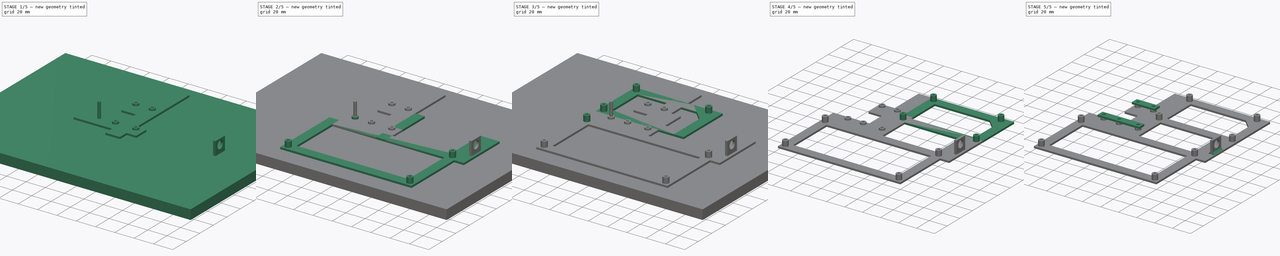
[diagram: build sequence overview — one tinted view per stage of 5, left to right]
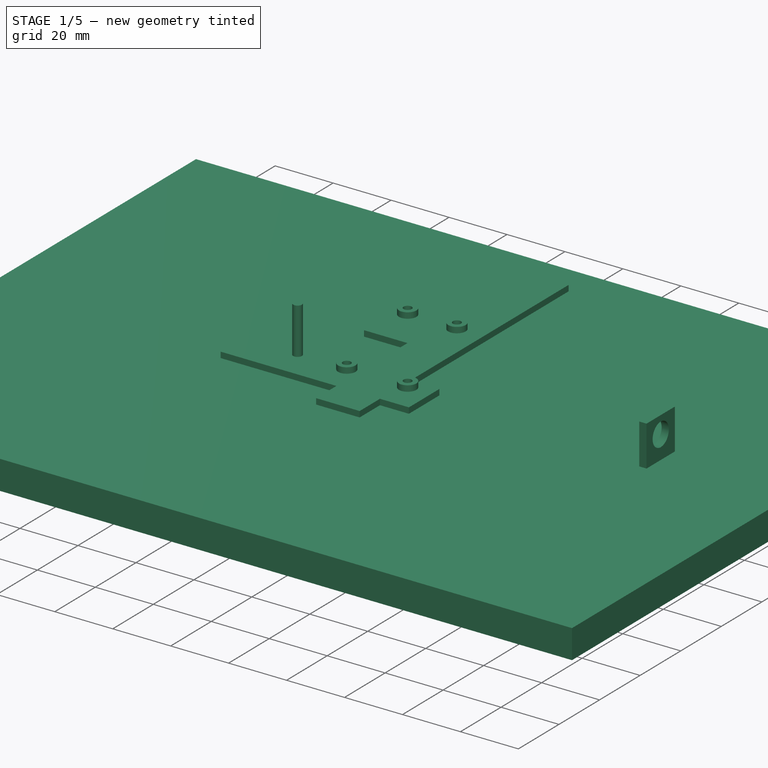
[diagram: stage 1 of 5 — iso view after this stage's code; geometry added in this stage tinted green]
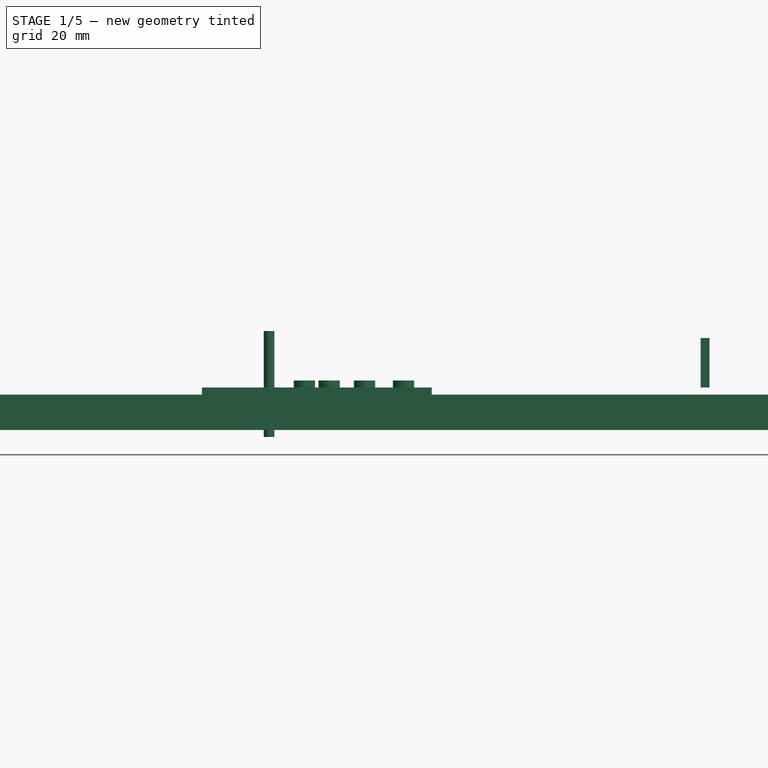
[diagram: stage 1 of 5 — front view after this stage's code; geometry added in this stage tinted green]
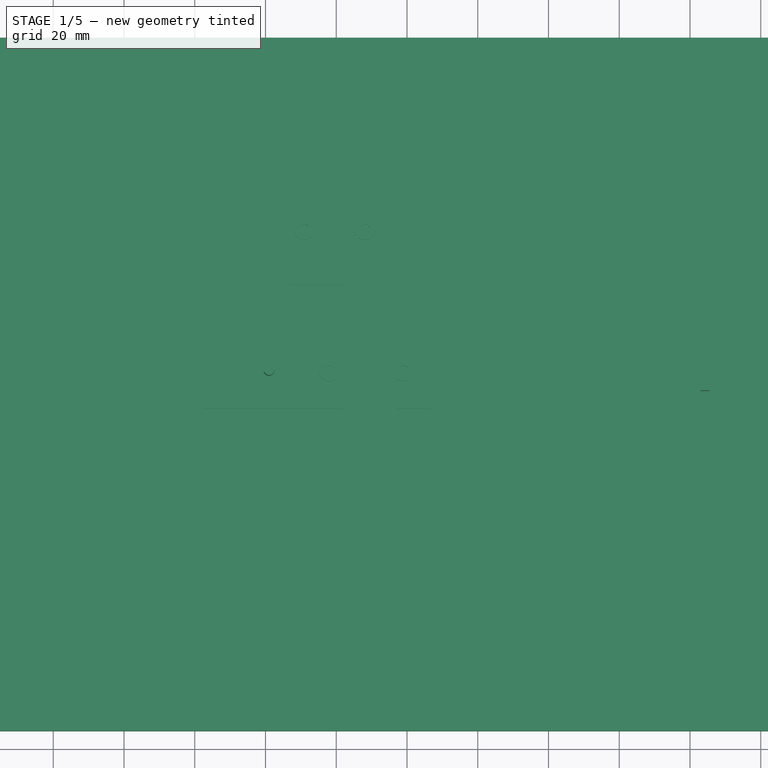
[diagram: stage 1 of 5 — top view after this stage's code; geometry added in this stage tinted green]
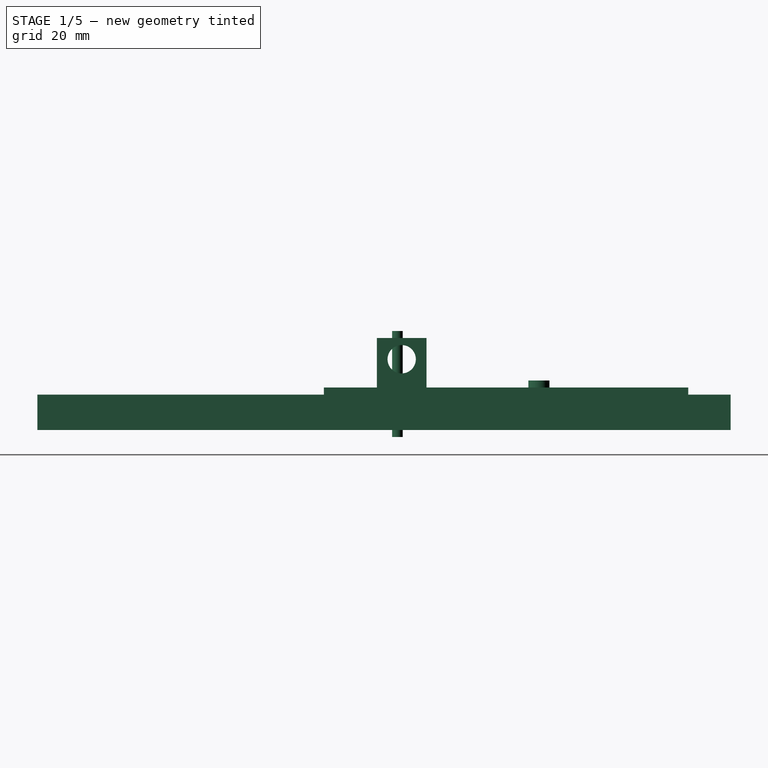
[diagram: stage 1 of 5 — right view after this stage's code; geometry added in this stage tinted green]
FCSTD DOCUMENT  (FreeCAD 0.18R4 (GitTag))
Label: bases_busvim_arduino
License: CreativeCommons Attribution-ShareAlike
LicenseURL: http://creativecommons.org/licenses/by-sa/4.0/
objects: Part::MultiFuse×27, Part::Box×17, Part::Feature×13, Part::Cut×12, Part::Cylinder×11, Part::Chamfer×2, Sketcher::SketchObject×1, Part::Extrusion×1
note: 84 computed .brp shape members not serialized (recipe doc carries the construction recipe); baked Part::Feature solids carry a one-line shape summary decoded from their .brp

FEATURE [Part::Box] Box010  label="Cube010"
  AttacherType = Attacher::AttachEngine3D
  Height = 2
  Length = 65
  Placement = pos=(82,-4,-115) rot=(0,0,1;0rad)
  Width = 15
FEATURE [Part::Box] Box011  label="Cube011"
  AttacherType = Attacher::AttachEngine3D
  Height = 2
  Length = 15
  Placement = pos=(122,-14,-115) rot=(0,0,1;0rad)
  Width = 103
FEATURE [Part::Feature] Fusion007002003011013  label="soporte_simple_009"
  Placement = pos=(94.2,-8.7,-4) rot=(0,0,1;0rad)
  shape: bbox 6 x 6 x 6 mm, 8 faces (baked)
FEATURE [Part::Feature] Fusion007002003011014  label="soporte_simple_010"
  Placement = pos=(111.2,-8.7,-4) rot=(0,0,1;0rad)
  shape: bbox 6 x 6 x 6 mm, 8 faces (baked)
FEATURE [Part::Feature] Fusion007002003011015  label="soporte_simple_011"
  Placement = pos=(132.2,-8.7,-4) rot=(0,0,1;0rad)
  shape: bbox 6 x 6 x 6 mm, 8 faces (baked)
FEATURE [Part::Box] Box012  label="Cube012"
  AttacherType = Attacher::AttachEngine3D
  Height = 2
  Length = 30
  Placement = pos=(107,31,-115) rot=(0,0,1;0rad)
  Width = 20
FEATURE [Part::Feature] Fusion007002003011016  label="soporte_simple_012"
  Placement = pos=(104.2,31.3,-4) rot=(0,0,1;0rad)
  shape: bbox 6 x 6 x 6 mm, 8 faces (baked)
FEATURE [Part::Feature] Fusion007002003011017  label="soporte_simple_013"
  Placement = pos=(121.2,31.3,-4) rot=(0,0,1;0rad)
  shape: bbox 6 x 6 x 6 mm, 8 faces (baked)
FEATURE [Part::MultiFuse] Fusion007002003011018
  Shapes = -> [Box010,Box011]
FEATURE [Part::MultiFuse] Fusion007002003011019
  Shapes = -> [Fusion007002003011018,Box012]
FEATURE [Part::MultiFuse] Fusion007002003011020
  Shapes = -> [Fusion007002003011019,Fusion007002003011017]
FEATURE [Part::MultiFuse] Fusion007002003011021
  Shapes = -> [Fusion007002003011016,Fusion007002003011020]
FEATURE [Part::MultiFuse] Fusion007002003011022
  Shapes = -> [Fusion007002003011021,Fusion007002003011015]
FEATURE [Part::MultiFuse] Fusion007002003011023
  Shapes = -> [Fusion007002003011022,Fusion007002003011014]
FEATURE [Part::Box] Box013  label="Cube013"
  AttacherType = Attacher::AttachEngine3D
  Height = 10
  Length = 267
  Placement = pos=(0,-95,-125) rot=(0,0,1;0rad)
  Width = 196
FEATURE [Part::Cylinder] Cylinder
  Angle = 360
  AttacherType = Attacher::AttachEngine3D
  Height = 30
  Placement = pos=(101,6.8,-127) rot=(0,0,1;0rad)
  Radius = 1.5
FEATURE [Part::Cylinder] Cylinder010
  Angle = 360
  AttacherType = Attacher::AttachEngine3D
  Height = 10
  Placement = pos=(273,16,-105) rot=(-0.57735,0.57735,0.57735;4.18879rad)
  Radius = 4
FEATURE [Part::Box] Box016  label="Cube016"
  AttacherType = Attacher::AttachEngine3D
  Height = 14
  Length = 2.5
  Placement = pos=(267,9,-113) rot=(0,0,1;0rad)
  Width = 14
FEATURE [Part::Cut] Cut011
  Base = -> Box016
  Placement = pos=(-44,-8,0) rot=(0,0,1;0rad)
  Tool = -> Cylinder010
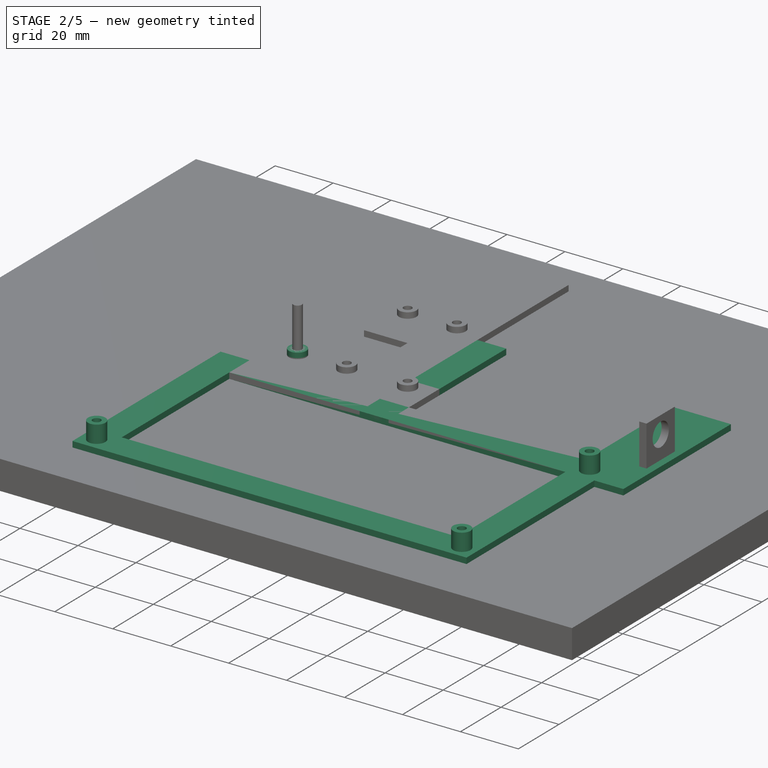
[diagram: stage 2 of 5 — iso view after this stage's code; geometry added in this stage tinted green]
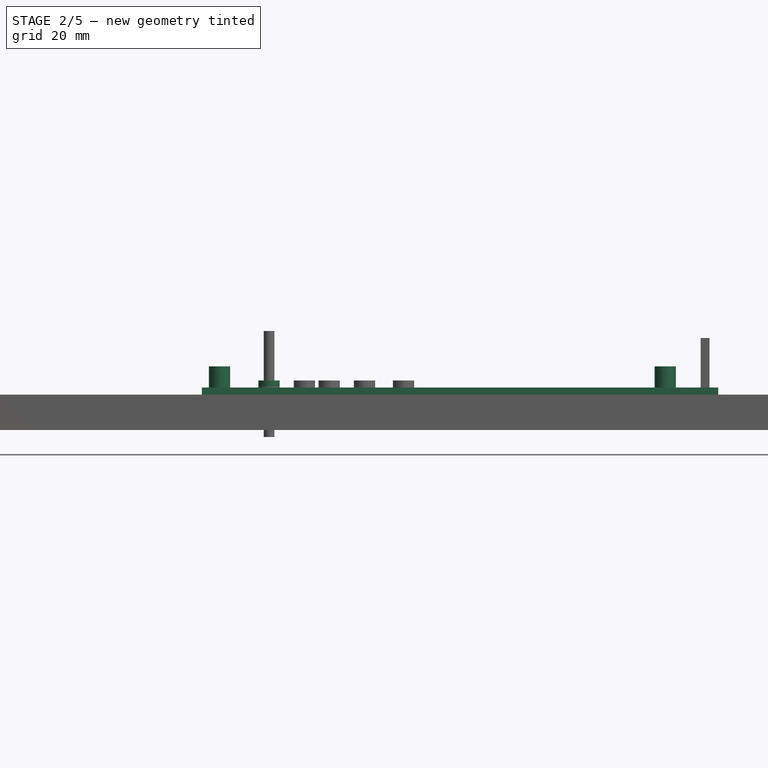
[diagram: stage 2 of 5 — front view after this stage's code; geometry added in this stage tinted green]
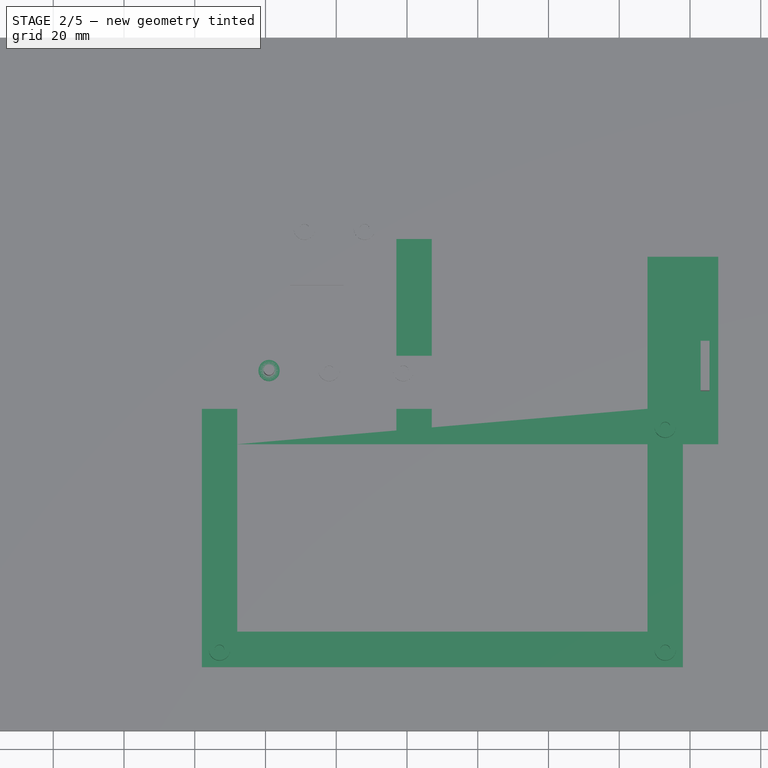
[diagram: stage 2 of 5 — top view after this stage's code; geometry added in this stage tinted green]
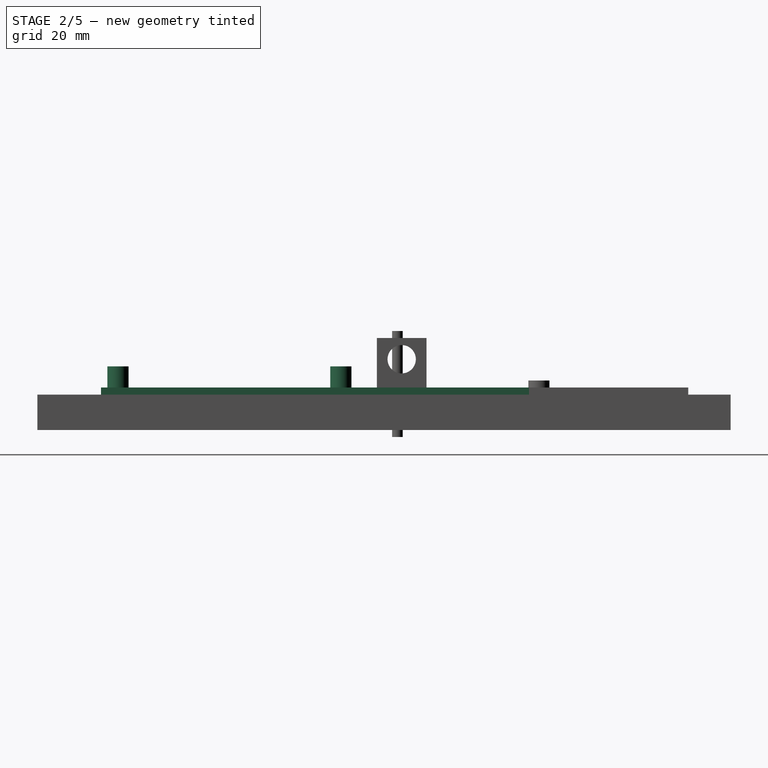
[diagram: stage 2 of 5 — right view after this stage's code; geometry added in this stage tinted green]
FEATURE [Part::Feature] Fusion007002003011002  label="soporte_simple_005"
  Placement = pos=(80.2,-24.7,0) rot=(0,0,1;0rad)
  shape: bbox 6 x 6 x 6 mm, 8 faces (baked)
FEATURE [Part::Feature] Fusion007002003011003  label="soporte_simple_006"
  Placement = pos=(206.2,-24.7,0) rot=(0,0,1;0rad)
  shape: bbox 6 x 6 x 6 mm, 8 faces (baked)
FEATURE [Part::Feature] Fusion007002003011004  label="soporte_simple_007"
  Placement = pos=(80.2,-87.7,0) rot=(0,0,1;0rad)
  shape: bbox 6 x 6 x 6 mm, 8 faces (baked)
FEATURE [Part::Feature] Fusion007002003011005  label="soporte_simple_008"
  Placement = pos=(206.2,-87.7,0) rot=(0,0,1;0rad)
  shape: bbox 6 x 6 x 6 mm, 8 faces (baked)
FEATURE [Part::Box] Box004  label="Cube004"
  AttacherType = Attacher::AttachEngine3D
  Height = 2
  Length = 136
  Placement = pos=(82,-14,-115) rot=(0,0,1;0rad)
  Width = 10
FEATURE [Part::Box] Box005  label="Cube005"
  AttacherType = Attacher::AttachEngine3D
  Height = 2
  Length = 136
  Placement = pos=(82,-77,-115) rot=(0,0,1;0rad)
  Width = 10
FEATURE [Part::Box] Box006  label="Cube006"
  AttacherType = Attacher::AttachEngine3D
  Height = 2
  Length = 10
  Placement = pos=(82,-77,-115) rot=(0,0,1;0rad)
  Width = 73
FEATURE [Part::Box] Box007  label="Cube007"
  AttacherType = Attacher::AttachEngine3D
  Height = 2
  Length = 10
  Placement = pos=(208,-77,-115) rot=(0,0,1;0rad)
  Width = 73
FEATURE [Part::MultiFuse] Fusion007002003011006
  Shapes = -> [Box006,Box004]
FEATURE [Part::MultiFuse] Fusion007002003011007
  Shapes = -> [Fusion007002003011006,Box007]
FEATURE [Part::MultiFuse] Fusion007002003011008
  Shapes = -> [Fusion007002003011007,Box005]
FEATURE [Part::MultiFuse] Fusion007002003011009
  Shapes = -> [Fusion007002003011008,Fusion007002003011005]
FEATURE [Part::MultiFuse] Fusion007002003011010
  Shapes = -> [Fusion007002003011009,Fusion007002003011004]
FEATURE [Part::MultiFuse] Fusion007002003011011
  Shapes = -> [Fusion007002003011010,Fusion007002003011003]
FEATURE [Part::Box] Box008  label="Cube008"
  AttacherType = Attacher::AttachEngine3D
  Height = 2
  Length = 10
  Placement = pos=(137,-14,-115) rot=(0,0,1;0rad)
  Width = 58
FEATURE [Part::Box] Box009  label="Cube009"
  AttacherType = Attacher::AttachEngine3D
  Height = 2
  Length = 20
  Placement = pos=(208,-14,-115) rot=(0,0,1;0rad)
  Width = 53
FEATURE [Part::MultiFuse] Fusion007002003011024
  Shapes = -> [Fusion007002003011023,Fusion007002003011013]
FEATURE [Part::MultiFuse] Fusion007002003011027
  Shapes = -> [Box008,Fusion007002003011024]
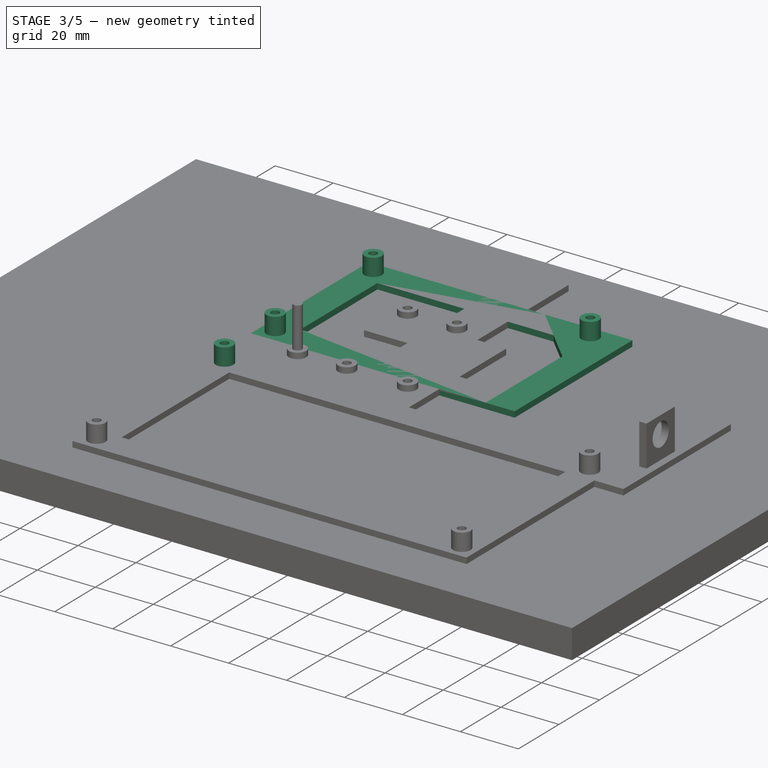
[diagram: stage 3 of 5 — iso view after this stage's code; geometry added in this stage tinted green]
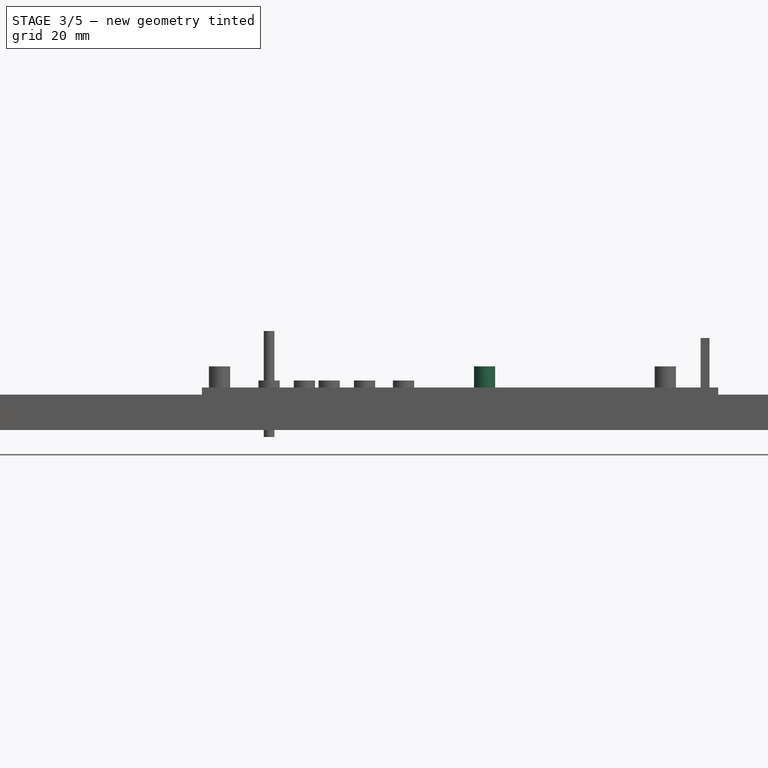
[diagram: stage 3 of 5 — front view after this stage's code; geometry added in this stage tinted green]
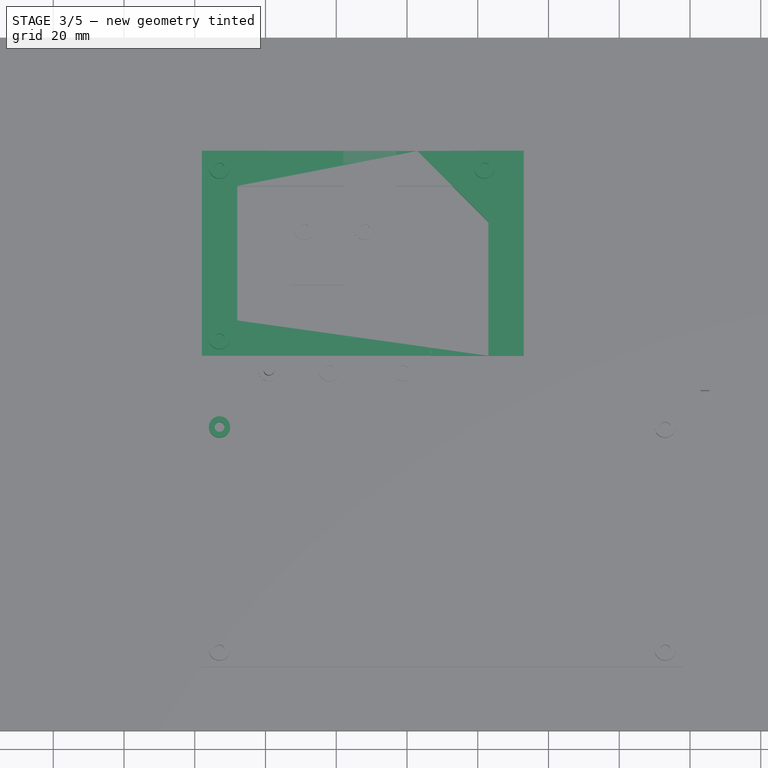
[diagram: stage 3 of 5 — top view after this stage's code; geometry added in this stage tinted green]
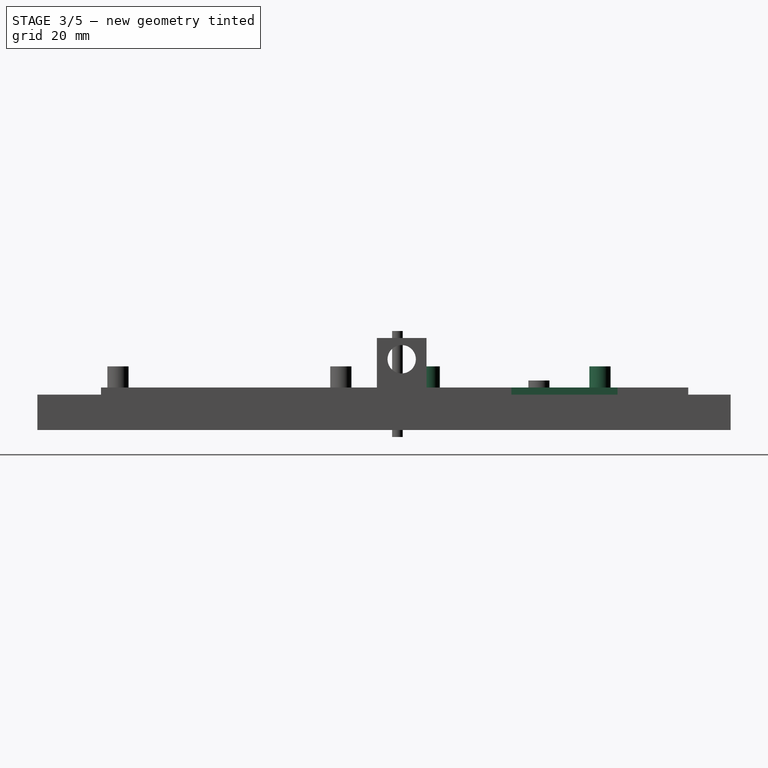
[diagram: stage 3 of 5 — right view after this stage's code; geometry added in this stage tinted green]
FEATURE [Part::Feature] Fusion007002003001  label="soporte_simple_1"
  Placement = pos=(80.2,0.3,0) rot=(0,0,1;0rad)
  shape: bbox 6 x 6 x 6 mm, 8 faces (baked)
FEATURE [Part::Feature] Fusion007002003002  label="soporte_simple_002"
  Placement = pos=(161.48,0.3,0) rot=(0,0,1;0rad)
  shape: bbox 6 x 6 x 6 mm, 8 faces (baked)
FEATURE [Part::Feature] Fusion007002003003  label="soporte_simple_003"
  Placement = pos=(80.2,48.56,0) rot=(0,0,1;0rad)
  shape: bbox 6 x 6 x 6 mm, 8 faces (baked)
FEATURE [Part::Feature] Fusion007002003004  label="soporte_simple_004"
  Placement = pos=(155.13,48.56,0) rot=(0,0,1;0rad)
  shape: bbox 6 x 6 x 6 mm, 8 faces (baked)
FEATURE [Part::Box] Box  label="Cube"
  AttacherType = Attacher::AttachEngine3D
  Height = 2
  Length = 10
  Placement = pos=(82,11,-115) rot=(0,0,1;0rad)
  Width = 58
FEATURE [Part::Box] Box001  label="Cube001"
  AttacherType = Attacher::AttachEngine3D
  Height = 2
  Length = 91
  Placement = pos=(82,59,-115) rot=(0,0,1;0rad)
  Width = 10
FEATURE [Part::Box] Box002  label="Cube002"
  AttacherType = Attacher::AttachEngine3D
  Height = 2
  Length = 91
  Placement = pos=(82,11,-115) rot=(0,0,1;0rad)
  Width = 10
FEATURE [Part::Box] Box003  label="Cube003"
  AttacherType = Attacher::AttachEngine3D
  Height = 2
  Length = 10
  Placement = pos=(163,11,-115) rot=(0,0,1;0rad)
  Width = 58
FEATURE [Sketcher::SketchObject] Sketch
  sketch-geometry (3):
    g0: LineSegment StartX=0 StartY=0 StartZ=0 EndX=0 EndY=30 EndZ=0
    g1: LineSegment StartX=0 StartY=30 StartZ=0 EndX=30 EndY=0 EndZ=0
    g2: LineSegment StartX=30 StartY=0 StartZ=0 EndX=0 EndY=0 EndZ=0
  constraints (8):
    c: Coincident(g-1,g0)
    c: PointOnObject(g0,g-2)
    c: Coincident(g0,g1)
    c: PointOnObject(g1,g-1)
    c: Coincident(g1,g2)
    c: Coincident(g2,g0)
    c: Equal(g0,g2)
    c: DistanceX(g2,g2) = 30
FEATURE [Part::Extrusion] Extrude
  Base = -> Sketch
  Dir = (0,0,1)
  DirMode = 2
  FaceMakerClass = Part::FaceMakerBullseye
  LengthFwd = 2
  LengthRev = 0
  Placement = pos=(172.9,68.9,-115) rot=(0,0,1;3.14159rad)
  Solid = true
  Symmetric = false
FEATURE [Part::MultiFuse] Fusion
  Shapes = -> [Box,Box001]
FEATURE [Part::MultiFuse] Fusion007002003005
  Shapes = -> [Fusion,Box003]
FEATURE [Part::MultiFuse] Fusion007002003006
  Shapes = -> [Extrude,Fusion007002003005]
FEATURE [Part::MultiFuse] Fusion007002003007
  Shapes = -> [Fusion007002003006,Box002]
FEATURE [Part::MultiFuse] Fusion007002003008
  Shapes = -> [Fusion007002003007,Fusion007002003001]
FEATURE [Part::MultiFuse] Fusion007002003009
  Shapes = -> [Fusion007002003008,Fusion007002003003]
FEATURE [Part::MultiFuse] Fusion007002003010
  Shapes = -> [Fusion007002003009,Fusion007002003004]
FEATURE [Part::MultiFuse] Fusion007002003011012  label="marco_busvim"
  Shapes = -> [Fusion007002003011011,Fusion007002003011002]
FEATURE [Part::MultiFuse] Fusion007002003011025
  Shapes = -> [Box009,Fusion007002003011012]
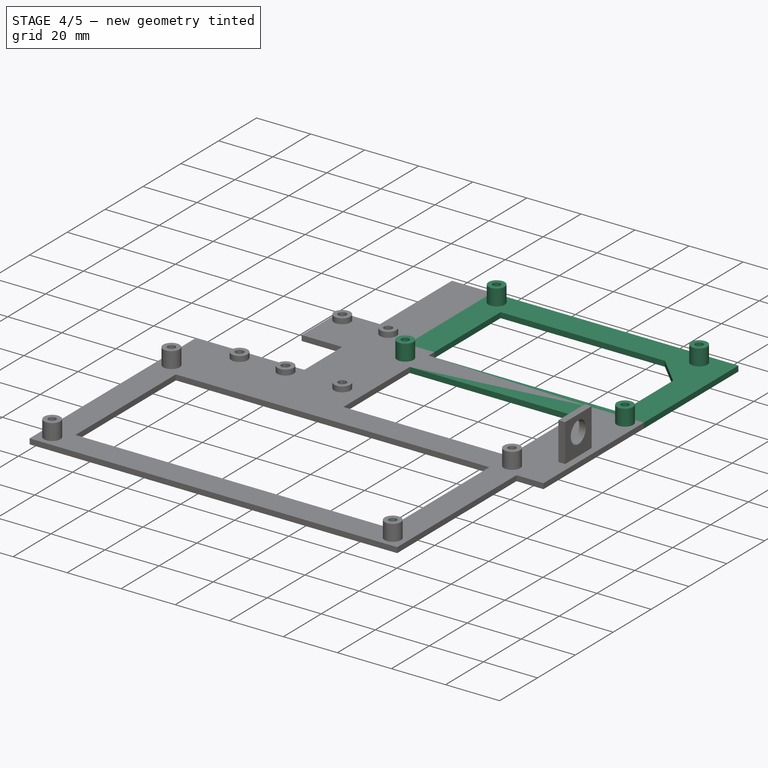
[diagram: stage 4 of 5 — iso view after this stage's code; geometry added in this stage tinted green]
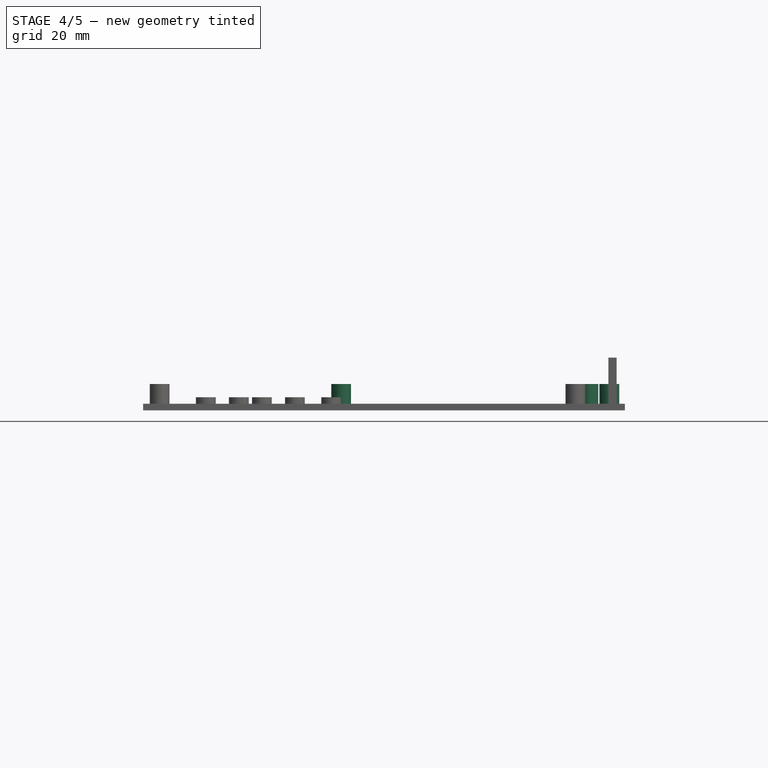
[diagram: stage 4 of 5 — front view after this stage's code; geometry added in this stage tinted green]
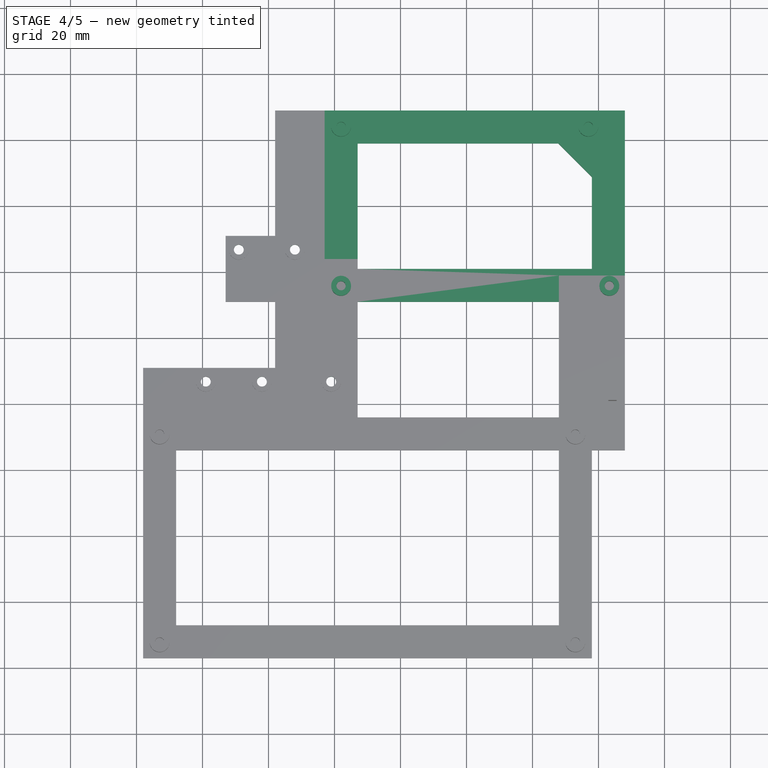
[diagram: stage 4 of 5 — top view after this stage's code; geometry added in this stage tinted green]
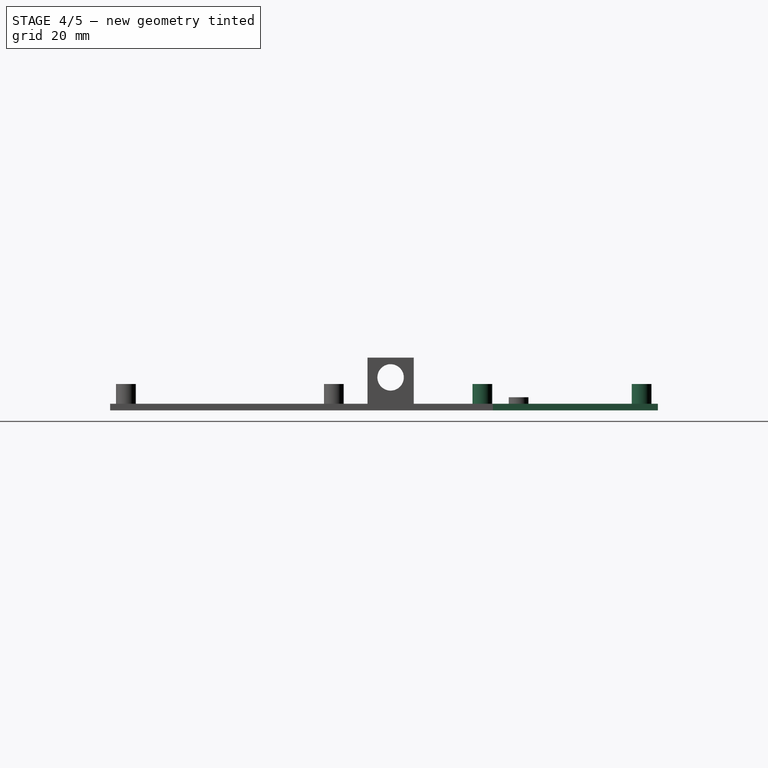
[diagram: stage 4 of 5 — right view after this stage's code; geometry added in this stage tinted green]
FEATURE [Part::MultiFuse] Fusion007002003011  label="marco_Arduino"
  Placement = pos=(55,20,0) rot=(0,0,1;0rad)
  Shapes = -> [Fusion007002003010,Fusion007002003002]
FEATURE [Part::MultiFuse] Fusion007002003011026
  Shapes = -> [Fusion007002003011025,Fusion007002003011]
FEATURE [Part::MultiFuse] Fusion007002003011028
  Shapes = -> [Fusion007002003011027,Fusion007002003011026]
FEATURE [Part::Cut] Cut  label="conjunto"
  Base = -> Fusion007002003011028
  Tool = -> Box013
FEATURE [Part::Cylinder] Cylinder002
  Angle = 360
  AttacherType = Attacher::AttachEngine3D
  Height = 30
  Placement = pos=(118,6.8,-127) rot=(0,0,1;0rad)
  Radius = 1.5
FEATURE [Part::Cylinder] Cylinder004
  Angle = 360
  AttacherType = Attacher::AttachEngine3D
  Height = 30
  Placement = pos=(139,6.8,-127) rot=(0,0,1;0rad)
  Radius = 1.5
FEATURE [Part::Cylinder] Cylinder006
  Angle = 360
  AttacherType = Attacher::AttachEngine3D
  Height = 30
  Placement = pos=(111,46.8,-127) rot=(0,0,1;0rad)
  Radius = 1.5
FEATURE [Part::Cylinder] Cylinder008
  Angle = 360
  AttacherType = Attacher::AttachEngine3D
  Height = 30
  Placement = pos=(128,46.8,-127) rot=(0,0,1;0rad)
  Radius = 1.5
FEATURE [Part::Cut] Cut001
  Base = -> Cut
  Tool = -> Cylinder
FEATURE [Part::Cut] Cut002
  Base = -> Cut001
  Tool = -> Cylinder002
FEATURE [Part::Cut] Cut003
  Base = -> Cut002
  Tool = -> Cylinder004
FEATURE [Part::Cut] Cut004
  Base = -> Cut003
  Tool = -> Cylinder006
FEATURE [Part::Cut] Cut005
  Base = -> Cut004
  Tool = -> Cylinder008
FEATURE [Part::MultiFuse] Fusion007002003011029
  Shapes = -> [Cut005,Cut011]
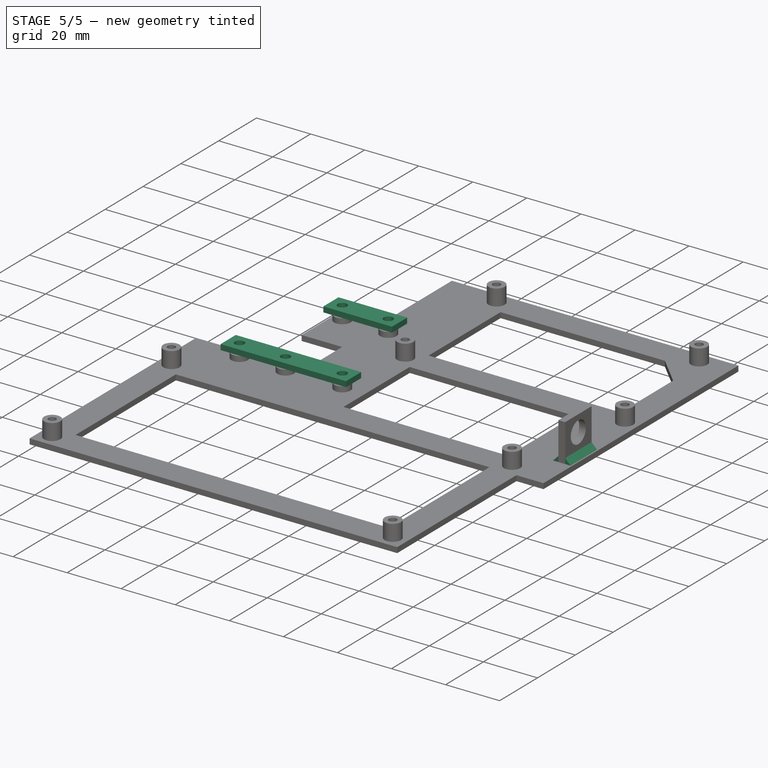
[diagram: stage 5 of 5 — iso view after this stage's code; geometry added in this stage tinted green]
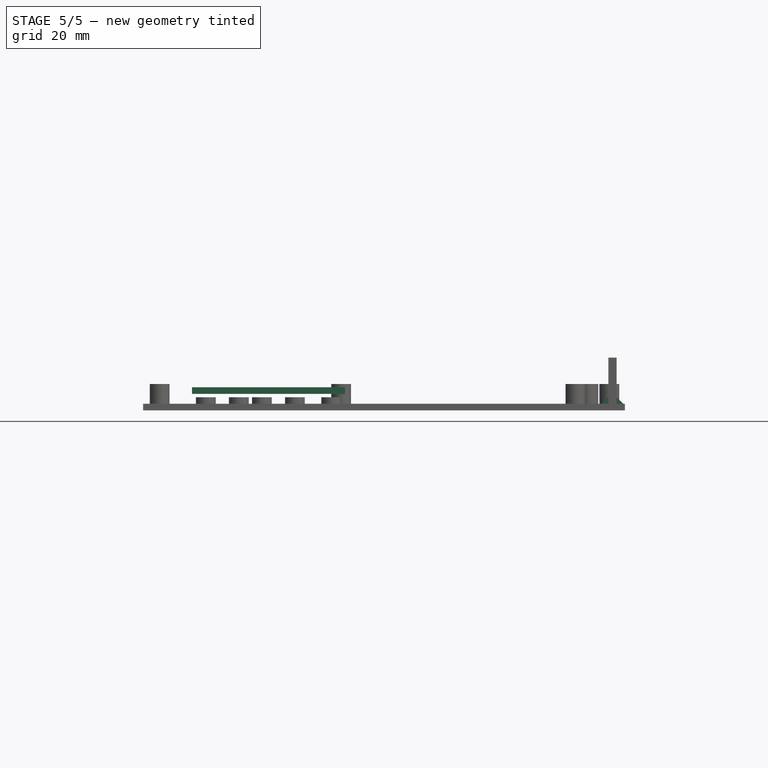
[diagram: stage 5 of 5 — front view after this stage's code; geometry added in this stage tinted green]
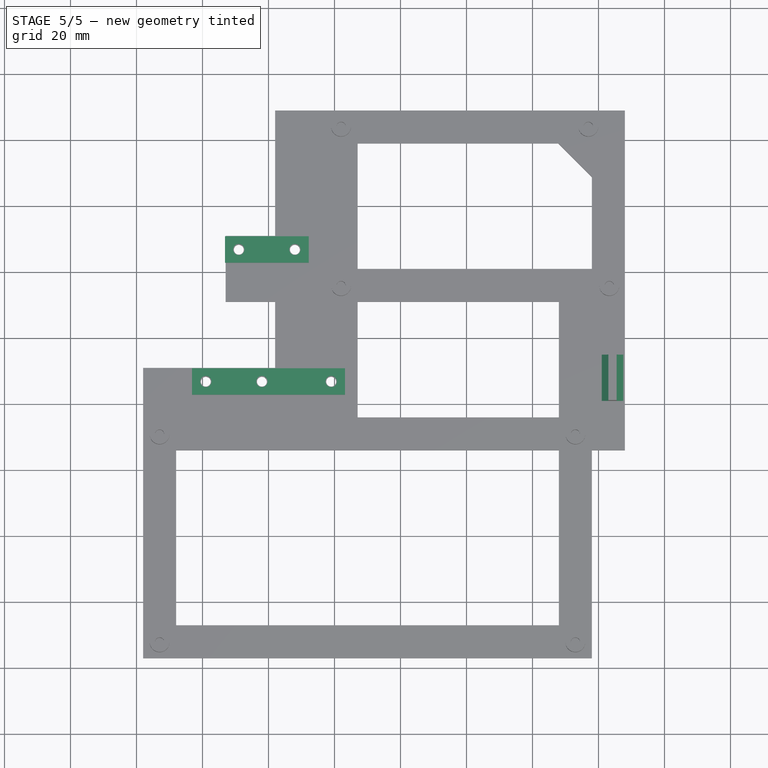
[diagram: stage 5 of 5 — top view after this stage's code; geometry added in this stage tinted green]
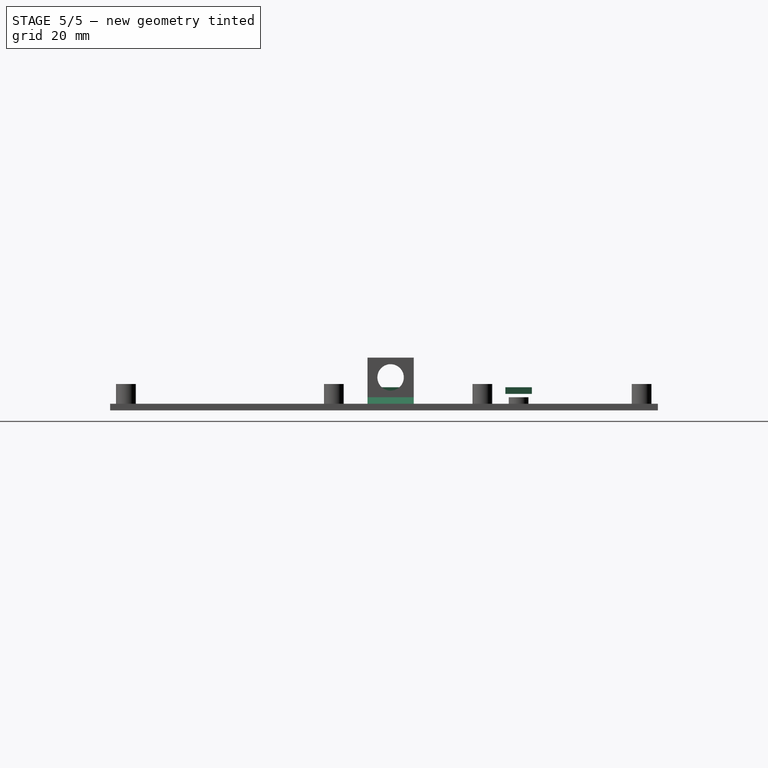
[diagram: stage 5 of 5 — right view after this stage's code; geometry added in this stage tinted green]
FEATURE [Part::Cylinder] Cylinder001
  Angle = 360
  AttacherType = Attacher::AttachEngine3D
  Height = 30
  Placement = pos=(101,6.8,-127) rot=(0,0,1;0rad)
  Radius = 1.7
FEATURE [Part::Cylinder] Cylinder003
  Angle = 360
  AttacherType = Attacher::AttachEngine3D
  Height = 30
  Placement = pos=(118,6.8,-127) rot=(0,0,1;0rad)
  Radius = 1.7
FEATURE [Part::Cylinder] Cylinder005
  Angle = 360
  AttacherType = Attacher::AttachEngine3D
  Height = 30
  Placement = pos=(139,6.8,-127) rot=(0,0,1;0rad)
  Radius = 1.7
FEATURE [Part::Cylinder] Cylinder007
  Angle = 360
  AttacherType = Attacher::AttachEngine3D
  Height = 30
  Placement = pos=(111,46.8,-127) rot=(0,0,1;0rad)
  Radius = 1.7
FEATURE [Part::Cylinder] Cylinder009
  Angle = 360
  AttacherType = Attacher::AttachEngine3D
  Height = 30
  Placement = pos=(128,46.8,-127) rot=(0,0,1;0rad)
  Radius = 1.7
FEATURE [Part::Box] Box014  label="Cube014"
  AttacherType = Attacher::AttachEngine3D
  Height = 2
  Length = 46.4
  Placement = pos=(96.8,2.8,-110) rot=(0,0,1;0rad)
  Width = 8
FEATURE [Part::Cut] Cut006
  Base = -> Box014
  Tool = -> Cylinder001
FEATURE [Part::Cut] Cut007
  Base = -> Cut006
  Tool = -> Cylinder003
FEATURE [Part::Cut] Cut008
  Base = -> Cut007
  Tool = -> Cylinder005
FEATURE [Part::Box] Box015  label="Cube015"
  AttacherType = Attacher::AttachEngine3D
  Height = 2
  Length = 25.4
  Placement = pos=(106.8,42.8,-110) rot=(0,0,1;0rad)
  Width = 8
FEATURE [Part::Cut] Cut009
  Base = -> Box015
  Tool = -> Cylinder007
FEATURE [Part::Cut] Cut010
  Base = -> Cut009
  Tool = -> Cylinder009
FEATURE [Part::Chamfer] Chamfer
  Base = -> Fusion007002003011029
  Edges = 1 edges r=2: [Edge120]
FEATURE [Part::Chamfer] Chamfer001
  Base = -> Chamfer
  Edges = 1 edges r=2: [Edge4]
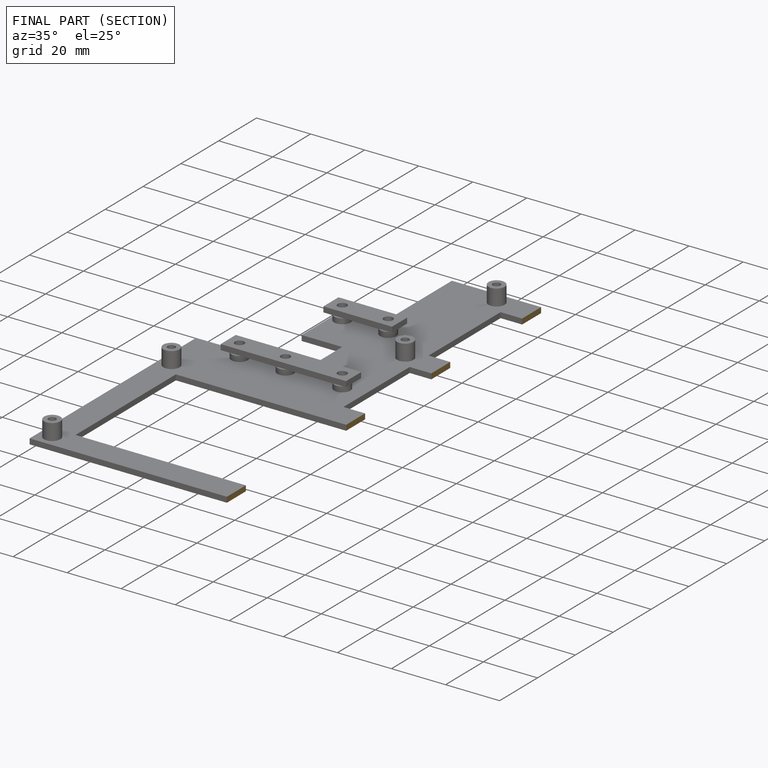
[diagram: finished part — half-section view (interior)]
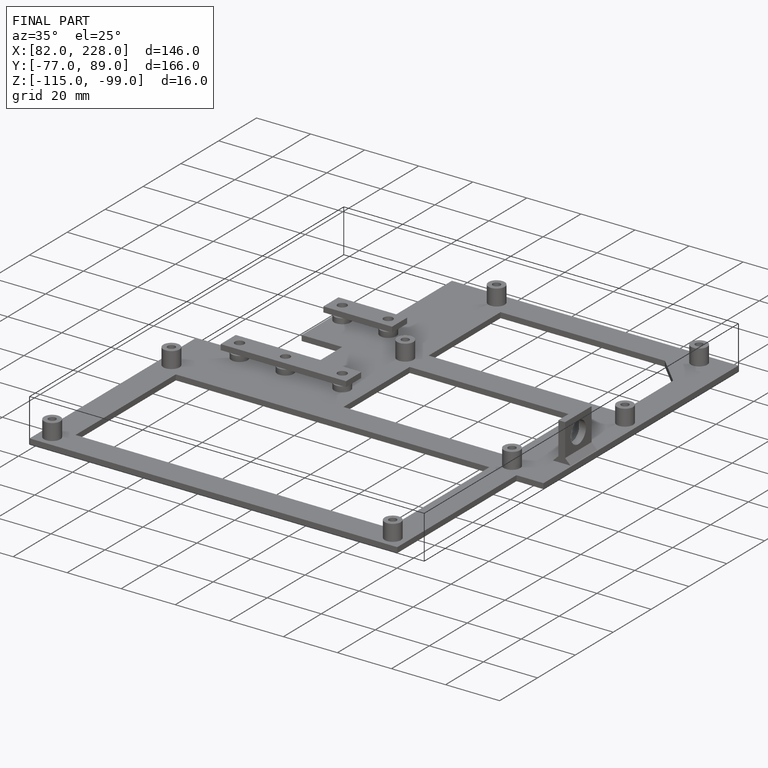
[diagram: finished part — iso view with bounding-box wireframe]
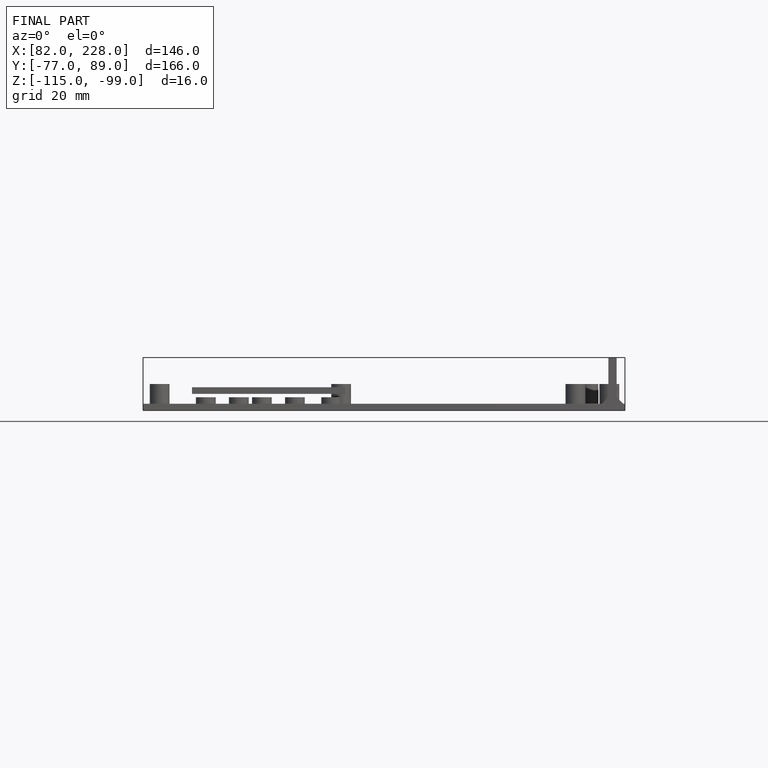
[diagram: finished part — front view with bounding-box wireframe]
